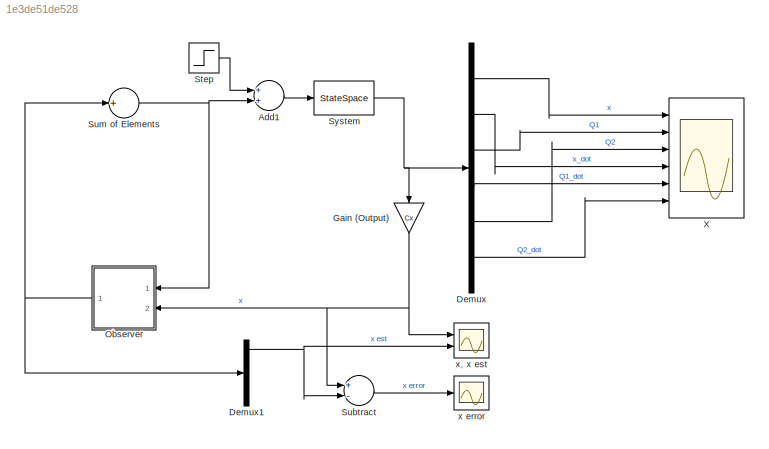
MODEL slx_1e3de51de528
KIND model
CONFIG AbsTol = auto
CONFIG FixedStep = auto
CONFIG MaxStep = auto
CONFIG MinStep = auto
CONFIG RelTol = 1e-3
CONFIG SampleTimeConstraint = Unconstrained
CONFIG Solver = VariableStepAuto
CONFIG SolverMode = Auto
CONFIG SolverName = VariableStepAuto
CONFIG StartTime = 0.0
CONFIG StopTime = 75
BLOCK [Sum] Add1
  InputSameDT = off
  OutDataTypeStr = Inherit: Inherit via internal rule
  Ports = [2, 1]
  SaturateOnIntegerOverflow = off
BLOCK [Demux] Demux
  DisplayOption = bar
  Outputs = 6
  Ports = [1, 6]
BLOCK [Demux] Demux1
  DisplayOption = bar
  Outputs = 6
  Ports = [1, 6]
BLOCK [Gain] Gain (Output)
  Gain = Cx
  Multiplication = Matrix(K*u)
  OutDataTypeStr = Inherit: Inherit via internal rule
  ParamDataTypeStr = Inherit: Inherit via internal rule
  SaturateOnIntegerOverflow = off
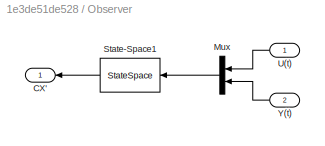
BLOCK [SubSystem] Observer
  Ports = [2, 1]
  RequestExecContextInheritance = off
  Variant = off
BLOCK [Outport] Observer/CX'
  IconDisplay = Port number
BLOCK [Mux] Observer/Mux
  DisplayOption = bar
  Inputs = 2
  Ports = [2, 1]
BLOCK [StateSpace] Observer/State-Space1
  A = Ax_obs
  B = Bx_obs
  C = C_all
  D = Dx_obs
  Ports = [1, 1]
  X0 = X_0_x_obs
BLOCK [Inport] Observer/U(t)
  IconDisplay = Port number
BLOCK [Inport] Observer/Y(t)
  IconDisplay = Port number
  Port = 2
BLOCK [Step] Step
  SampleTime = 0
  Time = 5
BLOCK [Sum] Subtract
  InputSameDT = off
  Inputs = +-
  OutDataTypeStr = Inherit: Inherit via internal rule
  Ports = [2, 1]
  SaturateOnIntegerOverflow = off
BLOCK [Sum] Sum of Elements
  InputSameDT = off
  Inputs = +
  OutDataTypeStr = Inherit: Inherit via internal rule
  Ports = [1, 1]
  SaturateOnIntegerOverflow = off
BLOCK [StateSpace] System
  A = A
  B = B
  C = C_all
  D = D
  Ports = [1, 1]
  X0 = X_0_l
BLOCK [Scope] X
  NumInputPorts = 6
  Ports = [6]
  ScopeSpecificationString = Simulink.scopes.TimeScopeBlockCfg('CurrentConfiguration', extmgr.ConfigurationSet(extmgr.Configuration('Core','General UI',true,'FigureColor',[1 1 1]),extmgr.Configuration('Core','Source UI',true),extmgr.Configuration('Sources','WiredSimulink',true,'DataLoggingVariableName','ScopeData2'),extmgr.Configuration('Visuals','Time Domain',true,'TimeAxisLabels','All','SerializedDisplays',{struct('MinYLimR...<+6605ch>
BLOCK [Scope] x error
  Ports = [1]
  ScopeSpecificationString = Simulink.scopes.TimeScopeBlockCfg('CurrentConfiguration', extmgr.ConfigurationSet(extmgr.Configuration('Core','General UI',true,'FigureColor',[1 1 1]),extmgr.Configuration('Core','Source UI',true),extmgr.Configuration('Sources','WiredSimulink',true,'DataLoggingVariableName','ScopeData1'),extmgr.Configuration('Visuals','Time Domain',true,'SerializedDisplays',{struct('MinYLimReal','-23.11535','MaxYL...<+2554ch>
BLOCK [Scope] x, x est
  NumInputPorts = 2
  Ports = [2]
  ScopeSpecificationString = Simulink.scopes.TimeScopeBlockCfg('CurrentConfiguration', extmgr.ConfigurationSet(extmgr.Configuration('Core','General UI',true,'FigureColor',[1 1 1]),extmgr.Configuration('Core','Source UI',true),extmgr.Configuration('Sources','WiredSimulink',true,'DataLoggingVariableName','ScopeData1'),extmgr.Configuration('Visuals','Time Domain',true,'SerializedDisplays',{struct('MinYLimReal','-15.30876','MaxYL...<+2472ch>
LINE Add1:1 -> System:1
NET Demux1:1 -> Subtract:2, x, x est:2
LINE Demux:1 -> X:1
LINE Demux:2 -> X:4
LINE Demux:3 -> X:2
LINE Demux:4 -> X:5
LINE Demux:5 -> X:3
LINE Demux:6 -> X:6
NET Gain (Output):1 -> Observer:2, Subtract:1, x, x est:1
LINE Observer/Mux:1 -> Observer/State-Space1:1
LINE Observer/State-Space1:1 -> Observer/CX':1
LINE Observer/U(t):1 -> Observer/Mux:1
LINE Observer/Y(t):1 -> Observer/Mux:2
NET Observer:1 -> Demux1:1, Sum of Elements:1
LINE Step:1 -> Add1:1
LINE Subtract:1 -> x error:1
NET Sum of Elements:1 -> Add1:2, Observer:1
NET System:1 -> Demux:1, Gain (Output):1
note: NET lines group one-source signal fan-out (src -> all destinations, sorted); 1:1 wires keep LINE
